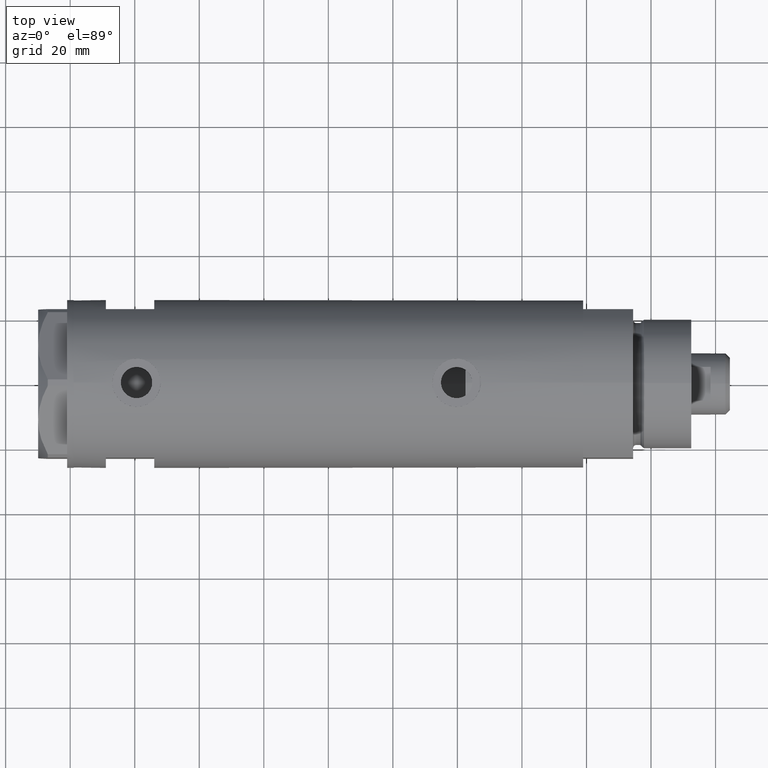
[diagram: clean part render]
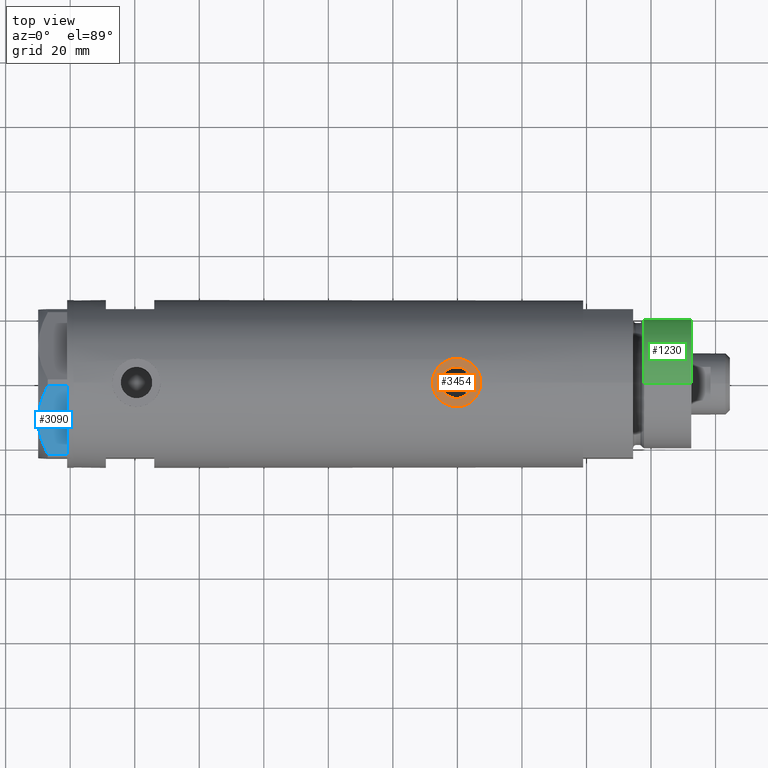
[diagram: same view with three faces highlighted in distinct colors, each labeled with its STEP entity id]
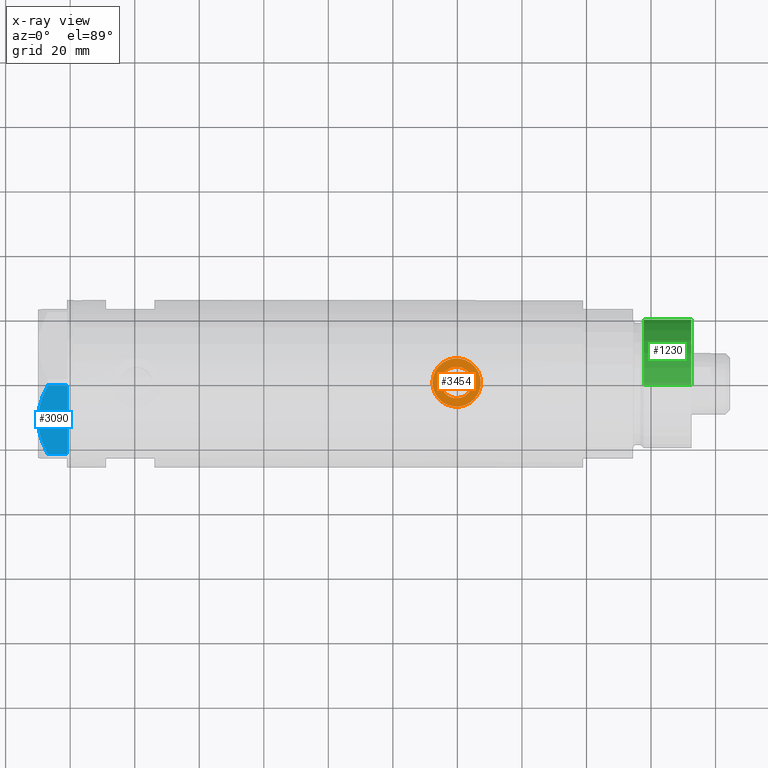
[diagram: x-ray of the same camera — body ghosted, the three highlighted faces saturated]
A machine part, top view with three faces highlighted in distinct colors.
The next image is the same camera in x-ray (body ghosted, the three faces saturated) — at least one of them is partly hidden behind the body in this view.
Their STEP definitions:

[orange] entity #3454 — the highlighted planar face has unit normal (0, 0, 1).
#169 = EDGE_CURVE ( 'NONE', #1928, #5171, #4080, .T. ) ;
#179 = ORIENTED_EDGE ( 'NONE', *, *, #2700, .F. ) ;
#239 = CIRCLE ( 'NONE', #2922, 4.865000000000001101 ) ;
#284 = PLANE ( 'NONE',  #2993 ) ;
#364 = DIRECTION ( 'NONE',  ( 1.000000000000000000, 0.000000000000000000, 0.000000000000000000 ) ) ;
#485 = EDGE_LOOP ( 'NONE', ( #5006, #179 ) ) ;
#1115 = VERTEX_POINT ( 'NONE', #1601 ) ;
#1272 = ORIENTED_EDGE ( 'NONE', *, *, #169, .T. ) ;
#1496 = FACE_OUTER_BOUND ( 'NONE', #4735, .T. ) ;
#1547 = FACE_BOUND ( 'NONE', #485, .T. ) ;
#1575 = CARTESIAN_POINT ( 'NONE',  ( 24.80000000000000426, 0.000000000000000000, -39.75000000000000000 ) ) ;
#1601 = CARTESIAN_POINT ( 'NONE',  ( 24.80000000000000426, 0.000000000000000000, -44.61500000000000199 ) ) ;
#1744 = DIRECTION ( 'NONE',  ( 0.000000000000000000, 0.000000000000000000, -1.000000000000000000 ) ) ;
#1761 = DIRECTION ( 'NONE',  ( 0.000000000000000000, 0.000000000000000000, -1.000000000000000000 ) ) ;
#1928 = VERTEX_POINT ( 'NONE', #5044 ) ;
#2002 = CIRCLE ( 'NONE', #3349, 7.500000000000000000 ) ;
#2058 = DIRECTION ( 'NONE',  ( 1.000000000000000000, 0.000000000000000000, 0.000000000000000000 ) ) ;
#2253 = DIRECTION ( 'NONE',  ( 1.000000000000000000, 0.000000000000000000, 0.000000000000000000 ) ) ;
#2603 = ORIENTED_EDGE ( 'NONE', *, *, #2769, .T. ) ;
#2700 = EDGE_CURVE ( 'NONE', #2959, #1115, #239, .T. ) ;
#2728 = CARTESIAN_POINT ( 'NONE',  ( 24.80000000000000426, 5.957906677851871624E-16, -34.88499999999999801 ) ) ;
#2769 = EDGE_CURVE ( 'NONE', #5171, #1928, #2002, .T. ) ;
#2782 = DIRECTION ( 'NONE',  ( 0.000000000000000000, 0.000000000000000000, -1.000000000000000000 ) ) ;
#2922 = AXIS2_PLACEMENT_3D ( 'NONE', #4456, #2058, #3671 ) ;
#2959 = VERTEX_POINT ( 'NONE', #2728 ) ;
#2975 = DIRECTION ( 'NONE',  ( 1.000000000000000000, 0.000000000000000000, 0.000000000000000000 ) ) ;
#2988 = CARTESIAN_POINT ( 'NONE',  ( 24.80000000000000426, 0.000000000000000000, -39.75000000000000000 ) ) ;
#2993 = AXIS2_PLACEMENT_3D ( 'NONE', #1575, #364, #2782 ) ;
#3025 = DIRECTION ( 'NONE',  ( 1.000000000000000000, 0.000000000000000000, 0.000000000000000000 ) ) ;
#3091 = AXIS2_PLACEMENT_3D ( 'NONE', #2988, #2253, #4597 ) ;
#3291 = EDGE_CURVE ( 'NONE', #1115, #2959, #3940, .T. ) ;
#3349 = AXIS2_PLACEMENT_3D ( 'NONE', #3846, #3025, #1761 ) ;
#3454 = ADVANCED_FACE ( 'NONE', ( #1547, #1496 ), #284, .T. ) ;
#3671 = DIRECTION ( 'NONE',  ( 0.000000000000000000, 0.000000000000000000, -1.000000000000000000 ) ) ;
#3726 = CARTESIAN_POINT ( 'NONE',  ( 24.80000000000000426, 0.000000000000000000, -39.75000000000000000 ) ) ;
#3846 = CARTESIAN_POINT ( 'NONE',  ( 24.80000000000000426, 0.000000000000000000, -39.75000000000000000 ) ) ;
#3940 = CIRCLE ( 'NONE', #3091, 4.865000000000001101 ) ;
#4014 = CARTESIAN_POINT ( 'NONE',  ( 24.80000000000000426, 9.184850993605147944E-16, -32.25000000000000000 ) ) ;
#4080 = CIRCLE ( 'NONE', #4411, 7.500000000000000000 ) ;
#4411 = AXIS2_PLACEMENT_3D ( 'NONE', #3726, #2975, #1744 ) ;
#4456 = CARTESIAN_POINT ( 'NONE',  ( 24.80000000000000426, 0.000000000000000000, -39.75000000000000000 ) ) ;
#4597 = DIRECTION ( 'NONE',  ( 0.000000000000000000, 0.000000000000000000, -1.000000000000000000 ) ) ;
#4735 = EDGE_LOOP ( 'NONE', ( #1272, #2603 ) ) ;
#5006 = ORIENTED_EDGE ( 'NONE', *, *, #3291, .F. ) ;
#5044 = CARTESIAN_POINT ( 'NONE',  ( 24.80000000000000426, 0.000000000000000000, -47.25000000000000000 ) ) ;
#5171 = VERTEX_POINT ( 'NONE', #4014 ) ;

[blue] entity #3090 — the highlighted planar face has unit normal (-0, 0.5, -0.866).
#6 = B_SPLINE_CURVE_WITH_KNOTS ( 'NONE', 3,
 ( #3151, #2698, #3498, #3946, #4386, #2304, #3102, #386, #2279, #784 ),
 .UNSPECIFIED., .F., .F.,
 ( 4, 2, 2, 2, 4 ),
 ( 0.01376519981810312397, 0.01998941321701459134, 0.02154546656674245428, 0.02310151991647032069, 0.02621362661592604310 ),
 .UNSPECIFIED. ) ;
#14 = CARTESIAN_POINT ( 'NONE',  ( -13.80210138309694301, -18.58946543380922378, 8.852712638955804181 ) ) ;
#36 = CARTESIAN_POINT ( 'NONE',  ( -22.03005154776146313, -13.83905619136139364, 5.983800287807550689 ) ) ;
#59 = CARTESIAN_POINT ( 'NONE',  ( -22.99999999999990408, -13.27905619136147841, 9.000000000000000000 ) ) ;
#66 = DIRECTION ( 'NONE',  ( -0.000000000000000000, 0.000000000000000000, -1.000000000000000000 ) ) ;
#94 = VERTEX_POINT ( 'NONE', #2929 ) ;
#236 = LINE ( 'NONE', #2252, #1228 ) ;
#258 = DIRECTION ( 'NONE',  ( 0.8660254037844415942, -0.4999999999999950595, 0.000000000000000000 ) ) ;
#367 = VERTEX_POINT ( 'NONE', #4291 ) ;
#386 = CARTESIAN_POINT ( 'NONE',  ( -2.640413878808339110, -25.03366871902064261, 6.844201024439214187 ) ) ;
#395 = EDGE_CURVE ( 'NONE', #2681, #367, #4035, .T. ) ;
#473 = DIRECTION ( 'NONE',  ( -0.8660254037844414832, 0.4999999999999950040, 0.000000000000000000 ) ) ;
#502 = PLANE ( 'NONE',  #4265 ) ;
#619 = EDGE_CURVE ( 'NONE', #5137, #1813, #236, .T. ) ;
#779 = DIRECTION ( 'NONE',  ( 0.8660254037844415942, -0.4999999999999950595, 0.000000000000000000 ) ) ;
#784 = CARTESIAN_POINT ( 'NONE',  ( -0.9699484522404678843, -25.99811238272155123, 5.983800287808756835 ) ) ;
#801 = ORIENTED_EDGE ( 'NONE', *, *, #4538, .T. ) ;
#878 = EDGE_LOOP ( 'NONE', ( #2881, #4350, #801, #2062, #2800, #2690, #3304 ) ) ;
#960 = CARTESIAN_POINT ( 'NONE',  ( -11.49999999999990585, -19.91858428704219364, 9.000000000000000000 ) ) ;
#1014 = VERTEX_POINT ( 'NONE', #960 ) ;
#1047 = VECTOR ( 'NONE', #258, 1000.000000000000000 ) ;
#1060 = EDGE_CURVE ( 'NONE', #2796, #5137, #2621, .T. ) ;
#1143 = B_SPLINE_CURVE_WITH_KNOTS ( 'NONE', 3,
 ( #36, #2054, #3191, #4078, #3275, #14, #2789, #2870, #4497, #4900 ),
 .UNSPECIFIED., .F., .F.,
 ( 4, 2, 2, 2, 4 ),
 ( 0.001228959670438514989, 0.007497079744270818830, 0.01063113978118697227, 0.01219816979964504812, 0.01376519981810312397 ),
 .UNSPECIFIED. ) ;
#1204 = EDGE_CURVE ( 'NONE', #94, #2796, #3383, .T. ) ;
#1228 = VECTOR ( 'NONE', #1831, 1000.000000000000000 ) ;
#1247 = CARTESIAN_POINT ( 'NONE',  ( -22.03005154776132102, -13.83905619136147536, 9.000000000000000000 ) ) ;
#1256 = CARTESIAN_POINT ( 'NONE',  ( -0.9699484522383943208, -25.99811238272274494, 0.000000000000000000 ) ) ;
#1290 = FACE_OUTER_BOUND ( 'NONE', #878, .T. ) ;
#1813 = VERTEX_POINT ( 'NONE', #3756 ) ;
#1831 = DIRECTION ( 'NONE',  ( 0.000000000000000000, 0.000000000000000000, 1.000000000000000000 ) ) ;
#2054 = CARTESIAN_POINT ( 'NONE',  ( -20.37350567916426058, -14.79546339452094017, 6.877782426143456362 ) ) ;
#2062 = ORIENTED_EDGE ( 'NONE', *, *, #1204, .T. ) ;
#2252 = CARTESIAN_POINT ( 'NONE',  ( -0.9699484522383977625, -25.99811238272274494, 9.000000000000000000 ) ) ;
#2279 = CARTESIAN_POINT ( 'NONE',  ( -1.799196345398571983, -25.51934588838179607, 6.431317509510369845 ) ) ;
#2299 = LINE ( 'NONE', #5172, #2419 ) ;
#2304 = CARTESIAN_POINT ( 'NONE',  ( -4.357207709417335373, -24.04247733877546267, 7.570552255230290406 ) ) ;
#2385 = EDGE_CURVE ( 'NONE', #2681, #1014, #1143, .T. ) ;
#2419 = VECTOR ( 'NONE', #779, 1000.000000000000000 ) ;
#2522 = DIRECTION ( 'NONE',  ( 0.4999999999999950595, 0.8660254037844415942, -0.000000000000000000 ) ) ;
#2558 = DIRECTION ( 'NONE',  ( 0.8660254037844415942, -0.4999999999999950595, 0.000000000000000000 ) ) ;
#2621 = LINE ( 'NONE', #4248, #1047 ) ;
#2681 = VERTEX_POINT ( 'NONE', #2850 ) ;
#2690 = ORIENTED_EDGE ( 'NONE', *, *, #619, .T. ) ;
#2698 = CARTESIAN_POINT ( 'NONE',  ( -9.678244919010385416, -20.97037507344893115, 9.000000000000088818 ) ) ;
#2789 = CARTESIAN_POINT ( 'NONE',  ( -13.34348161667001698, -18.85424967941148822, 8.907842277728438063 ) ) ;
#2796 = VERTEX_POINT ( 'NONE', #3821 ) ;
#2800 = ORIENTED_EDGE ( 'NONE', *, *, #1060, .T. ) ;
#2850 = CARTESIAN_POINT ( 'NONE',  ( -22.03005154776146313, -13.83905619136139364, 5.983800287807550689 ) ) ;
#2870 = CARTESIAN_POINT ( 'NONE',  ( -12.41906678023023325, -19.38796083407287085, 8.981686407609506873 ) ) ;
#2881 = ORIENTED_EDGE ( 'NONE', *, *, #2385, .F. ) ;
#2929 = CARTESIAN_POINT ( 'NONE',  ( -21.99999999999998224, -13.85640646055105485, 0.000000000000000000 ) ) ;
#3090 = ADVANCED_FACE ( 'NONE', ( #1290 ), #502, .F. ) ;
#3102 = CARTESIAN_POINT ( 'NONE',  ( -3.925137811031424562, -24.29193301091729396, 7.397272853992039821 ) ) ;
#3151 = CARTESIAN_POINT ( 'NONE',  ( -11.49999999999990585, -19.91858428704219364, 9.000000000000000000 ) ) ;
#3191 = CARTESIAN_POINT ( 'NONE',  ( -18.67981377008999644, -15.77331687414923778, 7.629374868826104716 ) ) ;
#3275 = CARTESIAN_POINT ( 'NONE',  ( -15.16323225988328538, -17.80361615569431777, 8.637313967156948991 ) ) ;
#3304 = ORIENTED_EDGE ( 'NONE', *, *, #3514, .F. ) ;
#3383 = LINE ( 'NONE', #4986, #4665 ) ;
#3498 = CARTESIAN_POINT ( 'NONE',  ( -7.884645426990268824, -22.00591022298511490, 8.707651728477127762 ) ) ;
#3514 = EDGE_CURVE ( 'NONE', #1014, #1813, #6, .T. ) ;
#3756 = CARTESIAN_POINT ( 'NONE',  ( -0.9699484522404678843, -25.99811238272155123, 5.983800287808756835 ) ) ;
#3821 = CARTESIAN_POINT ( 'NONE',  ( -0.9999999999997406519, -25.98076211353317433, 0.000000000000000000 ) ) ;
#3831 = VECTOR ( 'NONE', #66, 1000.000000000000000 ) ;
#3946 = CARTESIAN_POINT ( 'NONE',  ( -5.671686373603866294, -23.28356272816335348, 8.040681765829727823 ) ) ;
#4035 = LINE ( 'NONE', #1247, #3831 ) ;
#4078 = CARTESIAN_POINT ( 'NONE',  ( -16.05322244309625290, -17.28978008384019915, 8.426899937603781865 ) ) ;
#4248 = CARTESIAN_POINT ( 'NONE',  ( -22.99999999999990408, -13.27905619136147841, 0.000000000000000000 ) ) ;
#4265 = AXIS2_PLACEMENT_3D ( 'NONE', #59, #2522, #473 ) ;
#4291 = CARTESIAN_POINT ( 'NONE',  ( -22.03005154776132102, -13.83905619136147536, 0.000000000000000000 ) ) ;
#4350 = ORIENTED_EDGE ( 'NONE', *, *, #395, .T. ) ;
#4386 = CARTESIAN_POINT ( 'NONE',  ( -5.229981517799206614, -23.53858114556453529, 7.892128867758890998 ) ) ;
#4497 = CARTESIAN_POINT ( 'NONE',  ( -11.95865151389046588, -19.65378171203314395, 9.000000000000095923 ) ) ;
#4538 = EDGE_CURVE ( 'NONE', #367, #94, #2299, .T. ) ;
#4665 = VECTOR ( 'NONE', #2558, 1000.000000000000000 ) ;
#4900 = CARTESIAN_POINT ( 'NONE',  ( -11.49999999999990585, -19.91858428704219364, 9.000000000000000000 ) ) ;
#4986 = CARTESIAN_POINT ( 'NONE',  ( -22.99999999999990408, -13.27905619136147841, 0.000000000000000000 ) ) ;
#5137 = VERTEX_POINT ( 'NONE', #1256 ) ;
#5172 = CARTESIAN_POINT ( 'NONE',  ( -22.99999999999990408, -13.27905619136147841, 0.000000000000000000 ) ) ;

[green] entity #1230 — the highlighted cylindrical surface (partial cylindrical patch) has radius 20 mm, axis along (-1, -0, 0).
#266 = CARTESIAN_POINT ( 'NONE',  ( 19.99999999999999645, 2.449293598294706119E-15, 33.50000000000000000 ) ) ;
#497 = AXIS2_PLACEMENT_3D ( 'NONE', #1751, #3811, #2214 ) ;
#655 = VECTOR ( 'NONE', #3072, 1000.000000000000000 ) ;
#749 = DIRECTION ( 'NONE',  ( -0.000000000000000000, -0.000000000000000000, 1.000000000000000000 ) ) ;
#968 = ORIENTED_EDGE ( 'NONE', *, *, #2863, .T. ) ;
#1049 = LINE ( 'NONE', #2312, #4940 ) ;
#1057 = CARTESIAN_POINT ( 'NONE',  ( -19.99999999999999645, 0.000000000000000000, 33.50000000000000000 ) ) ;
#1084 = CARTESIAN_POINT ( 'NONE',  ( 19.99999999999999645, 2.449293598294706119E-15, 18.87384048104053846 ) ) ;
#1230 = ADVANCED_FACE ( 'NONE', ( #5009 ), #3330, .T. ) ;
#1443 = CARTESIAN_POINT ( 'NONE',  ( 19.99999999999999645, 2.449293598294706119E-15, 33.50000000000000000 ) ) ;
#1751 = CARTESIAN_POINT ( 'NONE',  ( 0.000000000000000000, 0.000000000000000000, 33.50000000000000000 ) ) ;
#1828 = CIRCLE ( 'NONE', #497, 19.99999999999999645 ) ;
#2186 = VERTEX_POINT ( 'NONE', #1084 ) ;
#2214 = DIRECTION ( 'NONE',  ( 1.000000000000000000, 0.000000000000000000, 0.000000000000000000 ) ) ;
#2217 = EDGE_CURVE ( 'NONE', #5030, #3274, #1049, .T. ) ;
#2312 = CARTESIAN_POINT ( 'NONE',  ( -19.99999999999999645, 0.000000000000000000, 33.50000000000000000 ) ) ;
#2774 = ORIENTED_EDGE ( 'NONE', *, *, #2217, .F. ) ;
#2844 = VERTEX_POINT ( 'NONE', #1443 ) ;
#2863 = EDGE_CURVE ( 'NONE', #2844, #2186, #3871, .T. ) ;
#2877 = ORIENTED_EDGE ( 'NONE', *, *, #4930, .T. ) ;
#2921 = CIRCLE ( 'NONE', #3939, 19.99999999999999645 ) ;
#3072 = DIRECTION ( 'NONE',  ( -0.000000000000000000, -0.000000000000000000, -1.000000000000000000 ) ) ;
#3274 = VERTEX_POINT ( 'NONE', #4643 ) ;
#3330 = CYLINDRICAL_SURFACE ( 'NONE', #4508, 19.99999999999999645 ) ;
#3709 = EDGE_LOOP ( 'NONE', ( #4319, #968, #2877, #2774 ) ) ;
#3811 = DIRECTION ( 'NONE',  ( 0.000000000000000000, 0.000000000000000000, 1.000000000000000000 ) ) ;
#3871 = LINE ( 'NONE', #266, #655 ) ;
#3939 = AXIS2_PLACEMENT_3D ( 'NONE', #4351, #749, #4377 ) ;
#4022 = CARTESIAN_POINT ( 'NONE',  ( 0.000000000000000000, 0.000000000000000000, 33.50000000000000000 ) ) ;
#4194 = DIRECTION ( 'NONE',  ( -0.000000000000000000, -0.000000000000000000, -1.000000000000000000 ) ) ;
#4319 = ORIENTED_EDGE ( 'NONE', *, *, #4825, .F. ) ;
#4351 = CARTESIAN_POINT ( 'NONE',  ( 0.000000000000000000, 0.000000000000000000, 18.87384048104053846 ) ) ;
#4368 = DIRECTION ( 'NONE',  ( -0.000000000000000000, -0.000000000000000000, -1.000000000000000000 ) ) ;
#4377 = DIRECTION ( 'NONE',  ( 1.000000000000000000, 0.000000000000000000, 0.000000000000000000 ) ) ;
#4508 = AXIS2_PLACEMENT_3D ( 'NONE', #4022, #4194, #4581 ) ;
#4581 = DIRECTION ( 'NONE',  ( -1.000000000000000000, 0.000000000000000000, 0.000000000000000000 ) ) ;
#4643 = CARTESIAN_POINT ( 'NONE',  ( -19.99999999999999645, 0.000000000000000000, 18.87384048104053846 ) ) ;
#4825 = EDGE_CURVE ( 'NONE', #2844, #5030, #1828, .T. ) ;
#4930 = EDGE_CURVE ( 'NONE', #2186, #3274, #2921, .T. ) ;
#4940 = VECTOR ( 'NONE', #4368, 1000.000000000000000 ) ;
#5009 = FACE_OUTER_BOUND ( 'NONE', #3709, .T. ) ;
#5030 = VERTEX_POINT ( 'NONE', #1057 ) ;